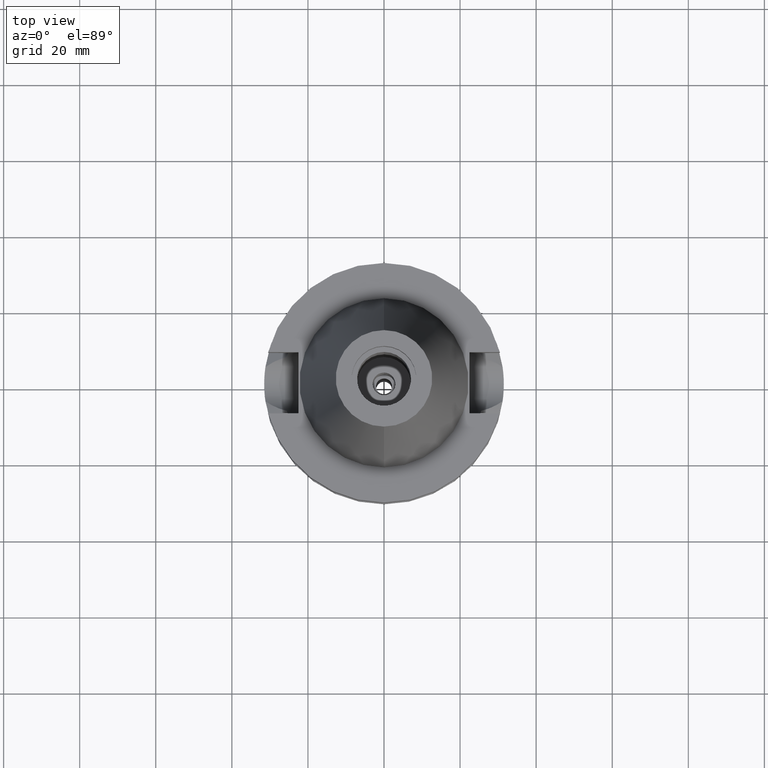
[diagram: clean part render]
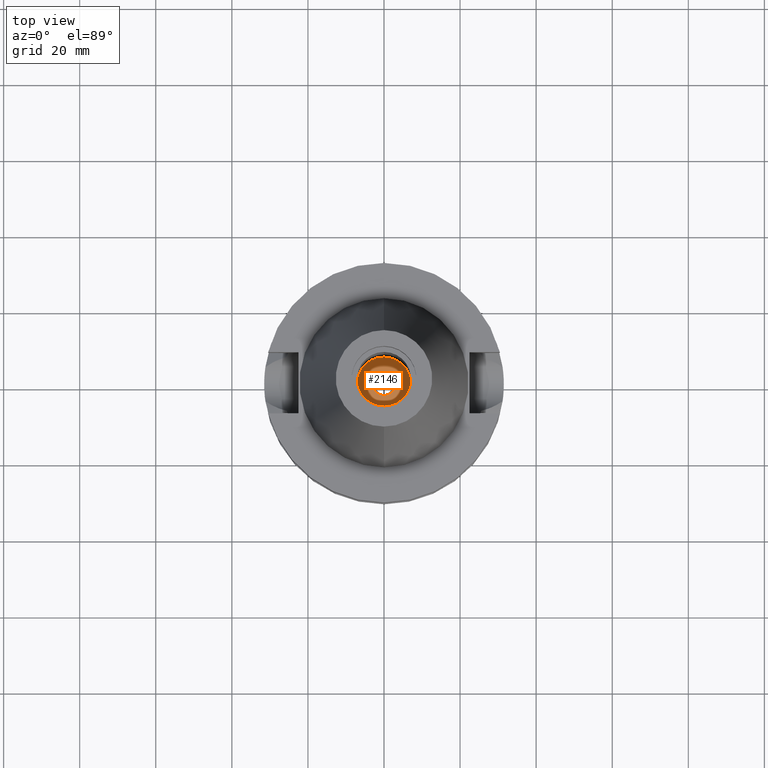
[diagram: same view with one face highlighted and labeled with its STEP entity id]
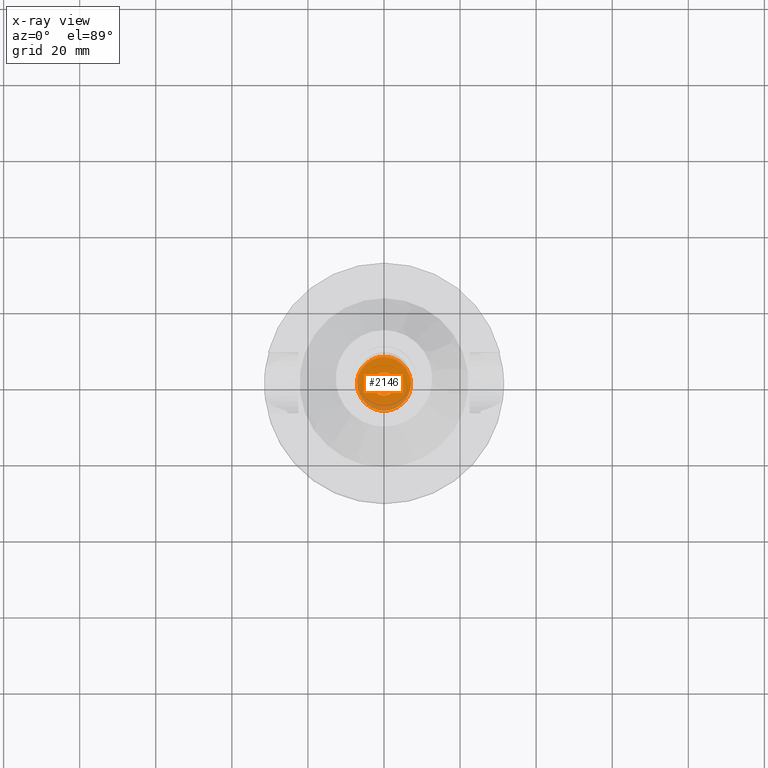
[diagram: x-ray of the same camera — body ghosted, the highlighted face saturated]
A machine part, top view. The second image highlights one B-rep face of the part: STEP entity #2146.
The next image is the same camera in x-ray: the body ghosted, the highlighted face saturated — about 14% of this face is hidden behind the body in this view.
In plain terms, the highlighted planar face has unit normal (0, 0, -1).
Its self-contained STEP definition (entity closure, byte-faithful):
#135 = DIRECTION ( 'NONE',  ( 0.0000000000000000000, -1.000000000000000000, 0.0000000000000000000 ) ) ;
#249 = CARTESIAN_POINT ( 'NONE',  ( 0.0000000000000000000, -7.100000000000000533, -19.59999999999999787 ) ) ;
#292 = ORIENTED_EDGE ( 'NONE', *, *, #2746, .F. ) ;
#359 = PLANE ( 'NONE',  #1826 ) ;
#412 = ORIENTED_EDGE ( 'NONE', *, *, #1876, .F. ) ;
#428 = VERTEX_POINT ( 'NONE', #581 ) ;
#457 = DIRECTION ( 'NONE',  ( 0.0000000000000000000, 0.0000000000000000000, -1.000000000000000000 ) ) ;
#458 = ORIENTED_EDGE ( 'NONE', *, *, #1758, .F. ) ;
#522 = AXIS2_PLACEMENT_3D ( 'NONE', #2554, #2795, #1655 ) ;
#581 = CARTESIAN_POINT ( 'NONE',  ( 0.0000000000000000000, 7.100000000000000533, -19.59999999999999787 ) ) ;
#626 = EDGE_LOOP ( 'NONE', ( #292, #458 ) ) ;
#718 = DIRECTION ( 'NONE',  ( 0.0000000000000000000, 1.000000000000000000, 0.0000000000000000000 ) ) ;
#754 = CARTESIAN_POINT ( 'NONE',  ( 0.0000000000000000000, 0.0000000000000000000, -19.59999999999999787 ) ) ;
#1007 = VERTEX_POINT ( 'NONE', #249 ) ;
#1054 = DIRECTION ( 'NONE',  ( 0.0000000000000000000, 0.0000000000000000000, -1.000000000000000000 ) ) ;
#1201 = AXIS2_PLACEMENT_3D ( 'NONE', #2235, #1054, #2912 ) ;
#1208 = VERTEX_POINT ( 'NONE', #2601 ) ;
#1248 = EDGE_CURVE ( 'NONE', #1208, #2524, #1976, .T. ) ;
#1268 = CIRCLE ( 'NONE', #2363, 7.100000000000000533 ) ;
#1482 = EDGE_LOOP ( 'NONE', ( #2954, #412 ) ) ;
#1655 = DIRECTION ( 'NONE',  ( 0.0000000000000000000, -1.000000000000000000, 0.0000000000000000000 ) ) ;
#1729 = CIRCLE ( 'NONE', #522, 3.000000000000000000 ) ;
#1758 = EDGE_CURVE ( 'NONE', #1007, #428, #2525, .T. ) ;
#1801 = CARTESIAN_POINT ( 'NONE',  ( 0.0000000000000000000, -3.000000000000000000, -19.59999999999999787 ) ) ;
#1826 = AXIS2_PLACEMENT_3D ( 'NONE', #754, #2214, #135 ) ;
#1876 = EDGE_CURVE ( 'NONE', #2524, #1208, #1729, .T. ) ;
#1958 = FACE_BOUND ( 'NONE', #1482, .T. ) ;
#1976 = CIRCLE ( 'NONE', #2079, 3.000000000000000000 ) ;
#2079 = AXIS2_PLACEMENT_3D ( 'NONE', #2416, #2404, #2379 ) ;
#2146 = ADVANCED_FACE ( 'NONE', ( #2861, #1958 ), #359, .F. ) ;
#2214 = DIRECTION ( 'NONE',  ( 0.0000000000000000000, 0.0000000000000000000, -1.000000000000000000 ) ) ;
#2235 = CARTESIAN_POINT ( 'NONE',  ( 0.0000000000000000000, 2.127456419478999887E-14, -19.59999999999999787 ) ) ;
#2363 = AXIS2_PLACEMENT_3D ( 'NONE', #2530, #457, #718 ) ;
#2379 = DIRECTION ( 'NONE',  ( 0.0000000000000000000, 1.000000000000000000, 0.0000000000000000000 ) ) ;
#2404 = DIRECTION ( 'NONE',  ( 0.0000000000000000000, 0.0000000000000000000, 1.000000000000000000 ) ) ;
#2416 = CARTESIAN_POINT ( 'NONE',  ( 0.0000000000000000000, 2.127456419478999887E-14, -19.59999999999999787 ) ) ;
#2524 = VERTEX_POINT ( 'NONE', #1801 ) ;
#2525 = CIRCLE ( 'NONE', #1201, 7.100000000000000533 ) ;
#2530 = CARTESIAN_POINT ( 'NONE',  ( 0.0000000000000000000, 2.127456419478999887E-14, -19.59999999999999787 ) ) ;
#2554 = CARTESIAN_POINT ( 'NONE',  ( 0.0000000000000000000, 2.127456419478999887E-14, -19.59999999999999787 ) ) ;
#2601 = CARTESIAN_POINT ( 'NONE',  ( 0.0000000000000000000, 3.000000000000000000, -19.59999999999999787 ) ) ;
#2746 = EDGE_CURVE ( 'NONE', #428, #1007, #1268, .T. ) ;
#2795 = DIRECTION ( 'NONE',  ( 0.0000000000000000000, 0.0000000000000000000, 1.000000000000000000 ) ) ;
#2861 = FACE_OUTER_BOUND ( 'NONE', #626, .T. ) ;
#2912 = DIRECTION ( 'NONE',  ( 0.0000000000000000000, -1.000000000000000000, 0.0000000000000000000 ) ) ;
#2954 = ORIENTED_EDGE ( 'NONE', *, *, #1248, .F. ) ;